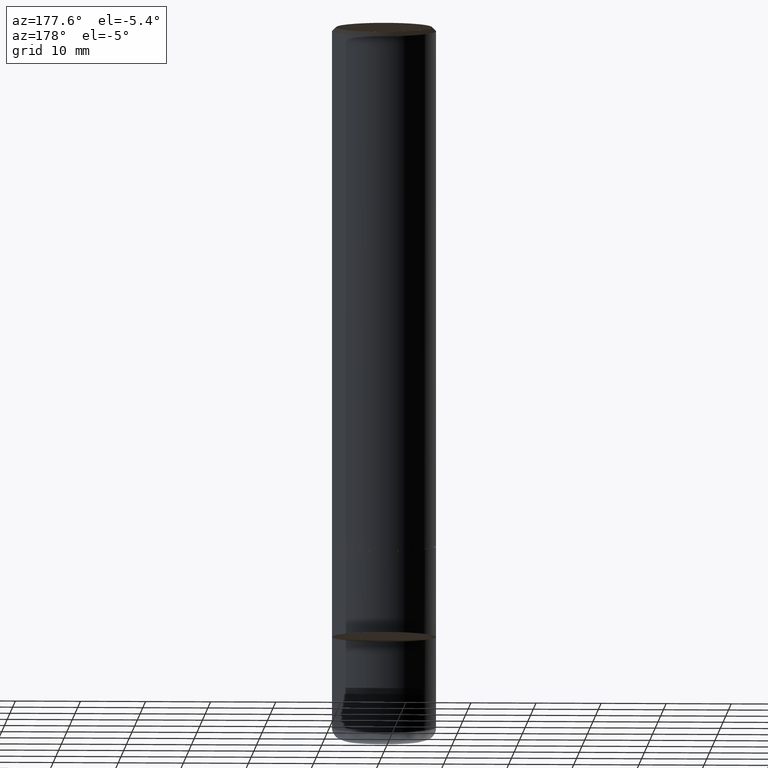
[diagram: clean part render]
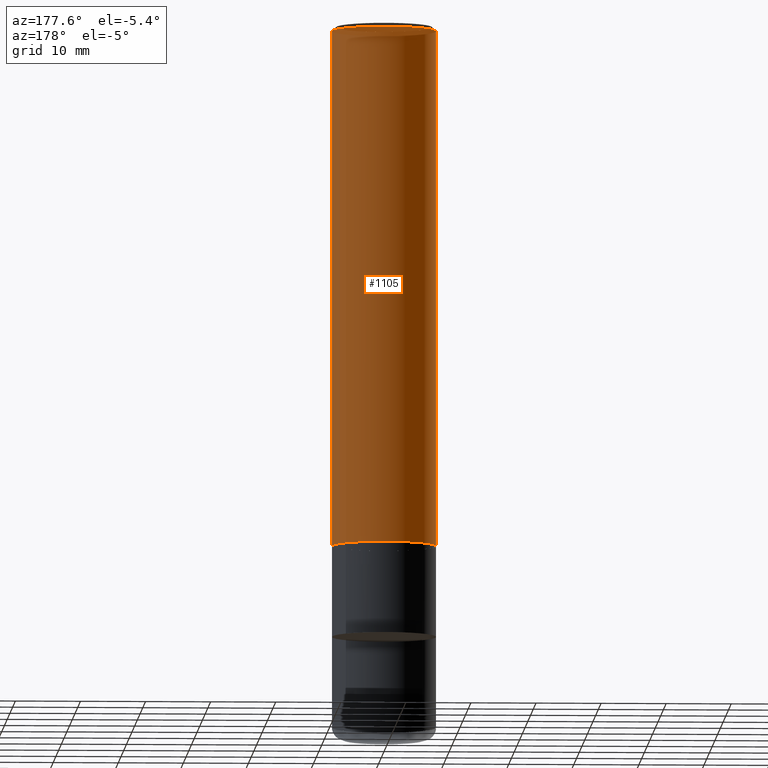
[diagram: same view with one face highlighted and labeled with its STEP entity id]
A machine part, auxiliary view. The second image highlights one B-rep face of the part: STEP entity #1105.
In plain terms, the highlighted face is a freeform B-spline surface patch.
Its self-contained STEP definition (entity closure, byte-faithful):
#870=CARTESIAN_POINT('',(8.0,0.0,0.0));
#871=CARTESIAN_POINT('',(8.0,8.0,0.0));
#872=CARTESIAN_POINT('',(0.0,8.0,0.0));
#873=CARTESIAN_POINT('',(-8.0,8.0,0.0));
#874=CARTESIAN_POINT('',(-8.0,0.0,0.0));
#875=CARTESIAN_POINT('',(8.0,0.0,79.4));
#876=CARTESIAN_POINT('',(8.0,8.0,79.4));
#877=CARTESIAN_POINT('',(0.0,8.0,79.4));
#878=CARTESIAN_POINT('',(-8.0,8.0,79.4));
#879=CARTESIAN_POINT('',(-8.0,0.0,79.4));
#1086=(
BOUNDED_SURFACE()
B_SPLINE_SURFACE(1,2,(
(#870,#871,#872,#873,#874),
(#875,#876,#877,#878,#879)
), .UNSPECIFIED.,.F.,.F.,.F.)
B_SPLINE_SURFACE_WITH_KNOTS((2,2),(3,2,3),(
0.0,1.0),(
0.0,0.5,1.0), .UNSPECIFIED.)
GEOMETRIC_REPRESENTATION_ITEM()
RATIONAL_B_SPLINE_SURFACE(((1.0,0.707106781187,1.0,0.707106781187,1.0),
(1.0,0.707106781187,1.0,0.707106781187,1.0)
))
REPRESENTATION_ITEM('')
SURFACE()
);
#1087=(
BOUNDED_CURVE()
B_SPLINE_CURVE(2,(#875,#876,#877,#878,#879),.UNSPECIFIED.,.F.,.F.)
B_SPLINE_CURVE_WITH_KNOTS((3,2,3),
(0.0,0.5,1.0),.UNSPECIFIED.)
CURVE()
GEOMETRIC_REPRESENTATION_ITEM()
RATIONAL_B_SPLINE_CURVE((1.0,0.707106781187,1.0,0.707106781187,1.0))
REPRESENTATION_ITEM('')
);
#1088=(
BOUNDED_CURVE()
B_SPLINE_CURVE(1,(#879,#874),.UNSPECIFIED.,.F.,.F.)
B_SPLINE_CURVE_WITH_KNOTS((2,2),
(0.0,1.0),.UNSPECIFIED.)
CURVE()
GEOMETRIC_REPRESENTATION_ITEM()
RATIONAL_B_SPLINE_CURVE((1.0,1.0))
REPRESENTATION_ITEM('')
);
#1089=(
BOUNDED_CURVE()
B_SPLINE_CURVE(2,(#874,#873,#872,#871,#870),.UNSPECIFIED.,.F.,.F.)
B_SPLINE_CURVE_WITH_KNOTS((3,2,3),
(0.0,0.5,1.0),.UNSPECIFIED.)
CURVE()
GEOMETRIC_REPRESENTATION_ITEM()
RATIONAL_B_SPLINE_CURVE((1.0,0.707106781187,1.0,0.707106781187,1.0))
REPRESENTATION_ITEM('')
);
#1090=(
BOUNDED_CURVE()
B_SPLINE_CURVE(1,(#870,#875),.UNSPECIFIED.,.F.,.F.)
B_SPLINE_CURVE_WITH_KNOTS((2,2),
(0.0,1.0),.UNSPECIFIED.)
CURVE()
GEOMETRIC_REPRESENTATION_ITEM()
RATIONAL_B_SPLINE_CURVE((1.0,1.0))
REPRESENTATION_ITEM('')
);
#1091=VERTEX_POINT('',#870);
#1092=VERTEX_POINT('',#874);
#1093=VERTEX_POINT('',#875);
#1094=VERTEX_POINT('',#879);
#1095=EDGE_CURVE('',#1093,#1094,#1087,.T.);
#1096=EDGE_CURVE('',#1094,#1092,#1088,.T.);
#1097=EDGE_CURVE('',#1092,#1091,#1089,.T.);
#1098=EDGE_CURVE('',#1091,#1093,#1090,.T.);
#1099=ORIENTED_EDGE('',*,*,#1095,.T.);
#1100=ORIENTED_EDGE('',*,*,#1096,.T.);
#1101=ORIENTED_EDGE('',*,*,#1097,.T.);
#1102=ORIENTED_EDGE('',*,*,#1098,.T.);
#1103=EDGE_LOOP('',(#1099,#1100,#1101,#1102));
#1104=FACE_OUTER_BOUND('',#1103,.T.);
#1105=ADVANCED_FACE('',(#1104),#1086,.T.);